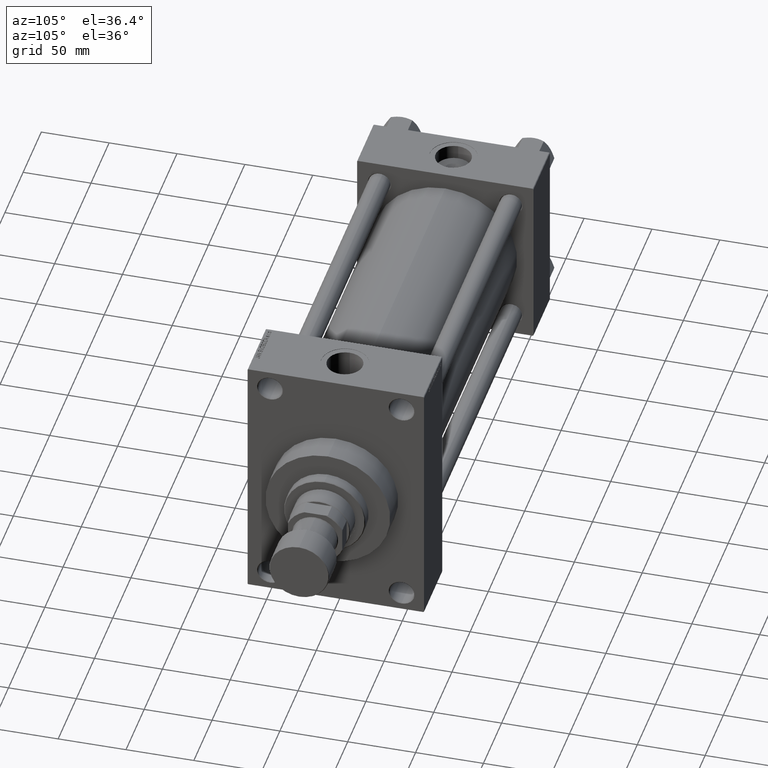
[diagram: clean part render]
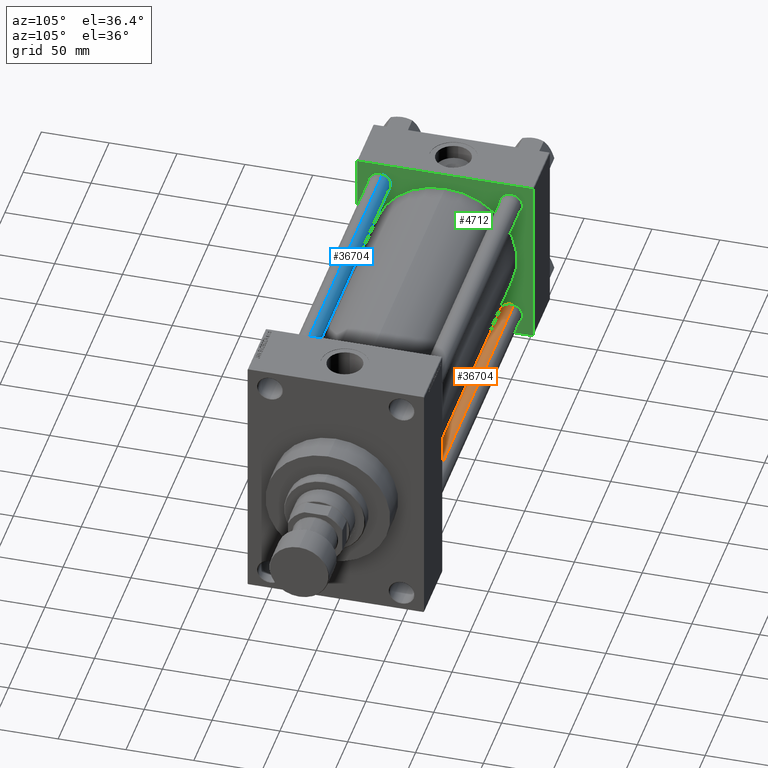
[diagram: same view with three faces highlighted in distinct colors, each labeled with its STEP entity id]
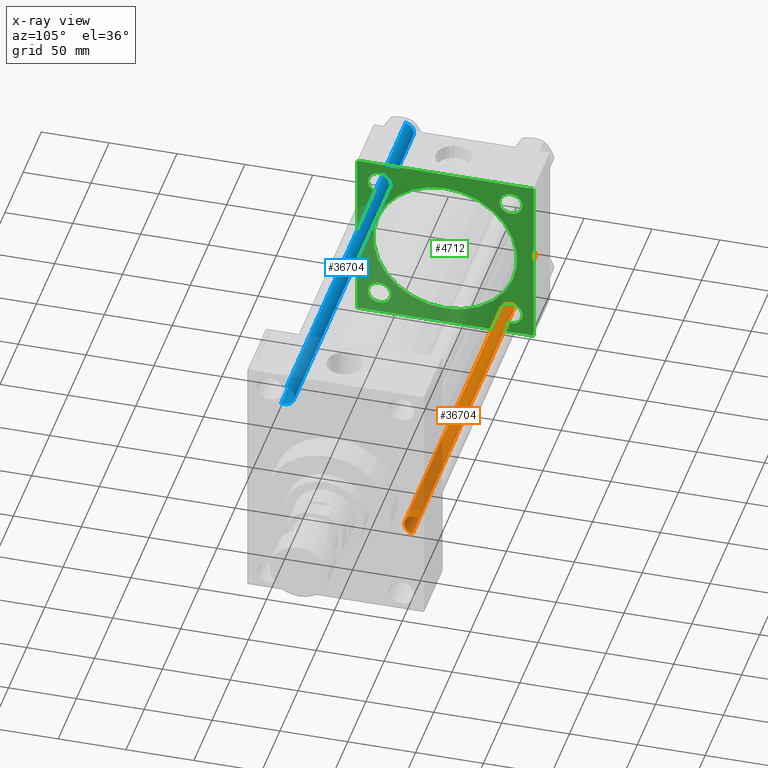
[diagram: x-ray of the same camera — body ghosted, the three highlighted faces saturated]
A machine part, auxiliary view with three faces highlighted in distinct colors.
The next image is the same camera in x-ray (body ghosted, the three faces saturated) — at least one of them is partly hidden behind the body in this view.
Their STEP definitions:

[orange] entity #36704 — the highlighted cylindrical surface (edge-blend (fillet) strip) has radius 8 mm, axis along (1, -0, 0).
#2401 = VERTEX_POINT ( 'NONE', #15594 ) ;
#3171 = CARTESIAN_POINT ( 'NONE',  ( 0.000000000000000000, 0.000000000000000000, 0.4999999999998894218 ) ) ;
#5388 = DIRECTION ( 'NONE',  ( -0.000000000000000000, -0.000000000000000000, -1.000000000000000000 ) ) ;
#6903 = VECTOR ( 'NONE', #46676, 1000.000000000000000 ) ;
#7329 = VERTEX_POINT ( 'NONE', #9004 ) ;
#8610 = CIRCLE ( 'NONE', #10175, 8.000000000000000000 ) ;
#9004 = CARTESIAN_POINT ( 'NONE',  ( -8.000000000000000000, 0.000000000000000000, 328.5000000000000000 ) ) ;
#9479 = ORIENTED_EDGE ( 'NONE', *, *, #25660, .F. ) ;
#10175 = AXIS2_PLACEMENT_3D ( 'NONE', #3171, #22133, #22368 ) ;
#12269 = DIRECTION ( 'NONE',  ( -0.000000000000000000, -0.000000000000000000, -1.000000000000000000 ) ) ;
#14270 = EDGE_CURVE ( 'NONE', #43964, #7329, #24417, .T. ) ;
#15274 = EDGE_LOOP ( 'NONE', ( #9479, #15983, #45624, #21773 ) ) ;
#15594 = CARTESIAN_POINT ( 'NONE',  ( 8.000000000000000000, 9.797174393178825657E-16, 0.4999999999998894218 ) ) ;
#15911 = CARTESIAN_POINT ( 'NONE',  ( 0.000000000000000000, 0.000000000000000000, 329.0000000000000000 ) ) ;
#15983 = ORIENTED_EDGE ( 'NONE', *, *, #14270, .T. ) ;
#17731 = LINE ( 'NONE', #25259, #6903 ) ;
#20709 = VECTOR ( 'NONE', #5388, 1000.000000000000000 ) ;
#21773 = ORIENTED_EDGE ( 'NONE', *, *, #34773, .T. ) ;
#22133 = DIRECTION ( 'NONE',  ( -0.000000000000000000, -0.000000000000000000, 1.000000000000000000 ) ) ;
#22368 = DIRECTION ( 'NONE',  ( 1.000000000000000000, 0.000000000000000000, 0.000000000000000000 ) ) ;
#23427 = DIRECTION ( 'NONE',  ( -1.000000000000000000, 0.000000000000000000, 0.000000000000000000 ) ) ;
#24417 = CIRCLE ( 'NONE', #45365, 8.000000000000000000 ) ;
#25089 = CARTESIAN_POINT ( 'NONE',  ( 8.000000000000000000, 9.797174393178825657E-16, 328.5000000000000000 ) ) ;
#25259 = CARTESIAN_POINT ( 'NONE',  ( -8.000000000000000000, 0.000000000000000000, 329.0000000000000000 ) ) ;
#25471 = DIRECTION ( 'NONE',  ( 1.000000000000000000, 0.000000000000000000, 0.000000000000000000 ) ) ;
#25660 = EDGE_CURVE ( 'NONE', #43964, #2401, #28224, .T. ) ;
#26839 = FACE_OUTER_BOUND ( 'NONE', #15274, .T. ) ;
#28224 = LINE ( 'NONE', #35034, #20709 ) ;
#31212 = EDGE_CURVE ( 'NONE', #7329, #41568, #17731, .T. ) ;
#34032 = CARTESIAN_POINT ( 'NONE',  ( -8.000000000000000000, 0.000000000000000000, 0.4999999999998894218 ) ) ;
#34601 = CYLINDRICAL_SURFACE ( 'NONE', #44380, 8.000000000000000000 ) ;
#34773 = EDGE_CURVE ( 'NONE', #41568, #2401, #8610, .T. ) ;
#35034 = CARTESIAN_POINT ( 'NONE',  ( 8.000000000000000000, 9.797174393178825657E-16, 329.0000000000000000 ) ) ;
#35704 = CARTESIAN_POINT ( 'NONE',  ( 0.000000000000000000, 0.000000000000000000, 328.5000000000000000 ) ) ;
#36704 = ADVANCED_FACE ( 'NONE', ( #26839 ), #34601, .T. ) ;
#41568 = VERTEX_POINT ( 'NONE', #34032 ) ;
#43483 = DIRECTION ( 'NONE',  ( 0.000000000000000000, 0.000000000000000000, -1.000000000000000000 ) ) ;
#43964 = VERTEX_POINT ( 'NONE', #25089 ) ;
#44380 = AXIS2_PLACEMENT_3D ( 'NONE', #15911, #12269, #23427 ) ;
#45365 = AXIS2_PLACEMENT_3D ( 'NONE', #35704, #43483, #25471 ) ;
#45624 = ORIENTED_EDGE ( 'NONE', *, *, #31212, .T. ) ;
#46676 = DIRECTION ( 'NONE',  ( -0.000000000000000000, -0.000000000000000000, -1.000000000000000000 ) ) ;

[blue] entity #36704 — the highlighted cylindrical surface (edge-blend (fillet) strip) has radius 8 mm, axis along (1, 0, 0).
#2401 = VERTEX_POINT ( 'NONE', #15594 ) ;
#3171 = CARTESIAN_POINT ( 'NONE',  ( 0.000000000000000000, 0.000000000000000000, 0.4999999999998894218 ) ) ;
#5388 = DIRECTION ( 'NONE',  ( -0.000000000000000000, -0.000000000000000000, -1.000000000000000000 ) ) ;
#6903 = VECTOR ( 'NONE', #46676, 1000.000000000000000 ) ;
#7329 = VERTEX_POINT ( 'NONE', #9004 ) ;
#8610 = CIRCLE ( 'NONE', #10175, 8.000000000000000000 ) ;
#9004 = CARTESIAN_POINT ( 'NONE',  ( -8.000000000000000000, 0.000000000000000000, 328.5000000000000000 ) ) ;
#9479 = ORIENTED_EDGE ( 'NONE', *, *, #25660, .F. ) ;
#10175 = AXIS2_PLACEMENT_3D ( 'NONE', #3171, #22133, #22368 ) ;
#12269 = DIRECTION ( 'NONE',  ( -0.000000000000000000, -0.000000000000000000, -1.000000000000000000 ) ) ;
#14270 = EDGE_CURVE ( 'NONE', #43964, #7329, #24417, .T. ) ;
#15274 = EDGE_LOOP ( 'NONE', ( #9479, #15983, #45624, #21773 ) ) ;
#15594 = CARTESIAN_POINT ( 'NONE',  ( 8.000000000000000000, 9.797174393178825657E-16, 0.4999999999998894218 ) ) ;
#15911 = CARTESIAN_POINT ( 'NONE',  ( 0.000000000000000000, 0.000000000000000000, 329.0000000000000000 ) ) ;
#15983 = ORIENTED_EDGE ( 'NONE', *, *, #14270, .T. ) ;
#17731 = LINE ( 'NONE', #25259, #6903 ) ;
#20709 = VECTOR ( 'NONE', #5388, 1000.000000000000000 ) ;
#21773 = ORIENTED_EDGE ( 'NONE', *, *, #34773, .T. ) ;
#22133 = DIRECTION ( 'NONE',  ( -0.000000000000000000, -0.000000000000000000, 1.000000000000000000 ) ) ;
#22368 = DIRECTION ( 'NONE',  ( 1.000000000000000000, 0.000000000000000000, 0.000000000000000000 ) ) ;
#23427 = DIRECTION ( 'NONE',  ( -1.000000000000000000, 0.000000000000000000, 0.000000000000000000 ) ) ;
#24417 = CIRCLE ( 'NONE', #45365, 8.000000000000000000 ) ;
#25089 = CARTESIAN_POINT ( 'NONE',  ( 8.000000000000000000, 9.797174393178825657E-16, 328.5000000000000000 ) ) ;
#25259 = CARTESIAN_POINT ( 'NONE',  ( -8.000000000000000000, 0.000000000000000000, 329.0000000000000000 ) ) ;
#25471 = DIRECTION ( 'NONE',  ( 1.000000000000000000, 0.000000000000000000, 0.000000000000000000 ) ) ;
#25660 = EDGE_CURVE ( 'NONE', #43964, #2401, #28224, .T. ) ;
#26839 = FACE_OUTER_BOUND ( 'NONE', #15274, .T. ) ;
#28224 = LINE ( 'NONE', #35034, #20709 ) ;
#31212 = EDGE_CURVE ( 'NONE', #7329, #41568, #17731, .T. ) ;
#34032 = CARTESIAN_POINT ( 'NONE',  ( -8.000000000000000000, 0.000000000000000000, 0.4999999999998894218 ) ) ;
#34601 = CYLINDRICAL_SURFACE ( 'NONE', #44380, 8.000000000000000000 ) ;
#34773 = EDGE_CURVE ( 'NONE', #41568, #2401, #8610, .T. ) ;
#35034 = CARTESIAN_POINT ( 'NONE',  ( 8.000000000000000000, 9.797174393178825657E-16, 329.0000000000000000 ) ) ;
#35704 = CARTESIAN_POINT ( 'NONE',  ( 0.000000000000000000, 0.000000000000000000, 328.5000000000000000 ) ) ;
#36704 = ADVANCED_FACE ( 'NONE', ( #26839 ), #34601, .T. ) ;
#41568 = VERTEX_POINT ( 'NONE', #34032 ) ;
#43483 = DIRECTION ( 'NONE',  ( 0.000000000000000000, 0.000000000000000000, -1.000000000000000000 ) ) ;
#43964 = VERTEX_POINT ( 'NONE', #25089 ) ;
#44380 = AXIS2_PLACEMENT_3D ( 'NONE', #15911, #12269, #23427 ) ;
#45365 = AXIS2_PLACEMENT_3D ( 'NONE', #35704, #43483, #25471 ) ;
#45624 = ORIENTED_EDGE ( 'NONE', *, *, #31212, .T. ) ;
#46676 = DIRECTION ( 'NONE',  ( -0.000000000000000000, -0.000000000000000000, -1.000000000000000000 ) ) ;

[green] entity #4712 — the highlighted planar face has unit normal (-1, 0, 0).
#30 = DIRECTION ( 'NONE',  ( -0.000000000000000000, 0.000000000000000000, 1.000000000000000000 ) ) ;
#62 = ORIENTED_EDGE ( 'NONE', *, *, #35291, .T. ) ;
#273 = PLANE ( 'NONE',  #40518 ) ;
#855 = DIRECTION ( 'NONE',  ( -1.000000000000000000, 0.000000000000000000, -0.000000000000000000 ) ) ;
#1073 = EDGE_CURVE ( 'NONE', #2585, #21709, #35714, .T. ) ;
#1119 = CARTESIAN_POINT ( 'NONE',  ( 45.00000000000000000, 64.49999999999997158, 65.00000000000001421 ) ) ;
#1941 = CARTESIAN_POINT ( 'NONE',  ( 45.00000000000000000, -65.00000000000000000, 64.50000000000000000 ) ) ;
#2421 = DIRECTION ( 'NONE',  ( -0.000000000000000000, 0.7071067811865474617, 0.7071067811865474617 ) ) ;
#2585 = VERTEX_POINT ( 'NONE', #17739 ) ;
#2828 = CARTESIAN_POINT ( 'NONE',  ( 45.00000000000000000, -65.00000000000000000, 64.50000000000000000 ) ) ;
#3374 = DIRECTION ( 'NONE',  ( -1.000000000000000000, 0.000000000000000000, -0.000000000000000000 ) ) ;
#3682 = CARTESIAN_POINT ( 'NONE',  ( 45.00000000000000000, -64.49999999999994316, -65.00000000000000000 ) ) ;
#3687 = FACE_OUTER_BOUND ( 'NONE', #34337, .T. ) ;
#4607 = VERTEX_POINT ( 'NONE', #14177 ) ;
#4712 = ADVANCED_FACE ( 'NONE', ( #22163, #7820, #29689, #15595, #33576, #3687 ), #273, .F. ) ;
#5514 = DIRECTION ( 'NONE',  ( 0.000000000000000000, 0.000000000000000000, 1.000000000000000000 ) ) ;
#5575 = ORIENTED_EDGE ( 'NONE', *, *, #33763, .F. ) ;
#6167 = DIRECTION ( 'NONE',  ( -1.000000000000000000, 0.000000000000000000, -0.000000000000000000 ) ) ;
#6248 = EDGE_CURVE ( 'NONE', #13080, #40911, #35893, .T. ) ;
#6315 = CARTESIAN_POINT ( 'NONE',  ( 45.00000000000000000, 65.00000000000000000, -64.49999999999995737 ) ) ;
#6745 = EDGE_CURVE ( 'NONE', #33483, #23123, #14206, .T. ) ;
#7820 = FACE_BOUND ( 'NONE', #43369, .T. ) ;
#7972 = CARTESIAN_POINT ( 'NONE',  ( 45.00000000000000000, -65.00000000000000000, 65.00000000000000000 ) ) ;
#8895 = EDGE_CURVE ( 'NONE', #39294, #28541, #26667, .T. ) ;
#9965 = ORIENTED_EDGE ( 'NONE', *, *, #39598, .T. ) ;
#10023 = DIRECTION ( 'NONE',  ( 1.000000000000000000, -0.000000000000000000, 0.000000000000000000 ) ) ;
#10397 = CARTESIAN_POINT ( 'NONE',  ( 45.00000000000000000, -48.44999999999999574, 56.94999999999986784 ) ) ;
#10768 = CIRCLE ( 'NONE', #37911, 8.500000000000007105 ) ;
#11079 = VERTEX_POINT ( 'NONE', #27239 ) ;
#12155 = CIRCLE ( 'NONE', #15279, 8.499999999999840128 ) ;
#12304 = DIRECTION ( 'NONE',  ( 0.000000000000000000, 0.000000000000000000, 1.000000000000000000 ) ) ;
#12908 = CARTESIAN_POINT ( 'NONE',  ( 45.00000000000000000, 65.00000000000000000, 65.00000000000001421 ) ) ;
#12954 = ORIENTED_EDGE ( 'NONE', *, *, #20732, .T. ) ;
#13080 = VERTEX_POINT ( 'NONE', #38210 ) ;
#13178 = CARTESIAN_POINT ( 'NONE',  ( 44.99999999999998579, -2.602085213965210642E-15, 0.000000000000000000 ) ) ;
#13259 = CIRCLE ( 'NONE', #46634, 8.499999999999840128 ) ;
#13506 = CARTESIAN_POINT ( 'NONE',  ( 45.00000000000000000, 65.00000000000000000, 65.00000000000001421 ) ) ;
#13668 = VERTEX_POINT ( 'NONE', #27626 ) ;
#14075 = CARTESIAN_POINT ( 'NONE',  ( 45.00000000000000000, 48.45000000000000995, -48.45000000000001705 ) ) ;
#14177 = CARTESIAN_POINT ( 'NONE',  ( 45.00000000000000000, -48.44999999999999574, -56.94999999999986784 ) ) ;
#14206 = CIRCLE ( 'NONE', #34361, 53.00000000000000711 ) ;
#14720 = CIRCLE ( 'NONE', #44991, 8.500000000000007105 ) ;
#15122 = CARTESIAN_POINT ( 'NONE',  ( 45.00000000000000000, 48.45000000000000995, 56.95000000000002416 ) ) ;
#15279 = AXIS2_PLACEMENT_3D ( 'NONE', #25725, #3374, #33494 ) ;
#15433 = ORIENTED_EDGE ( 'NONE', *, *, #22790, .T. ) ;
#15595 = FACE_BOUND ( 'NONE', #38389, .T. ) ;
#15994 = CARTESIAN_POINT ( 'NONE',  ( 45.00000000000000000, 48.45000000000000995, 48.45000000000001705 ) ) ;
#16158 = VERTEX_POINT ( 'NONE', #43653 ) ;
#17075 = CARTESIAN_POINT ( 'NONE',  ( 44.99999999999998579, -2.602085213965210642E-15, 0.000000000000000000 ) ) ;
#17078 = CIRCLE ( 'NONE', #34120, 53.00000000000000711 ) ;
#17592 = DIRECTION ( 'NONE',  ( 0.000000000000000000, -1.000000000000000000, -1.067522139062650425E-16 ) ) ;
#17594 = CARTESIAN_POINT ( 'NONE',  ( 45.00000000000000000, -48.44999999999999574, 48.45000000000003126 ) ) ;
#17605 = VERTEX_POINT ( 'NONE', #27748 ) ;
#17660 = VECTOR ( 'NONE', #38173, 1000.000000000000000 ) ;
#17739 = CARTESIAN_POINT ( 'NONE',  ( 45.00000000000000000, -64.49999999999997158, 65.00000000000000000 ) ) ;
#18037 = LINE ( 'NONE', #3682, #42772 ) ;
#20090 = CARTESIAN_POINT ( 'NONE',  ( 45.00000000000000000, -48.44999999999999574, -48.45000000000003126 ) ) ;
#20176 = LINE ( 'NONE', #12908, #17660 ) ;
#20298 = DIRECTION ( 'NONE',  ( -1.000000000000000000, 0.000000000000000000, -0.000000000000000000 ) ) ;
#20578 = DIRECTION ( 'NONE',  ( -1.000000000000000000, 0.000000000000000000, -0.000000000000000000 ) ) ;
#20732 = EDGE_CURVE ( 'NONE', #32146, #16158, #30735, .T. ) ;
#20864 = EDGE_LOOP ( 'NONE', ( #32769, #26560 ) ) ;
#21094 = DIRECTION ( 'NONE',  ( -1.000000000000000000, 0.000000000000000000, -0.000000000000000000 ) ) ;
#21346 = DIRECTION ( 'NONE',  ( -1.000000000000000000, 0.000000000000000000, -0.000000000000000000 ) ) ;
#21545 = EDGE_CURVE ( 'NONE', #40911, #13080, #12155, .T. ) ;
#21709 = VERTEX_POINT ( 'NONE', #2828 ) ;
#22163 = FACE_BOUND ( 'NONE', #32384, .T. ) ;
#22257 = VERTEX_POINT ( 'NONE', #27472 ) ;
#22790 = EDGE_CURVE ( 'NONE', #17605, #4607, #33890, .T. ) ;
#22978 = CARTESIAN_POINT ( 'NONE',  ( 45.00000000000000000, 48.45000000000000995, 48.45000000000001705 ) ) ;
#23013 = DIRECTION ( 'NONE',  ( 0.000000000000000000, 0.000000000000000000, -1.000000000000000000 ) ) ;
#23123 = VERTEX_POINT ( 'NONE', #46030 ) ;
#23934 = LINE ( 'NONE', #13506, #28089 ) ;
#24115 = ORIENTED_EDGE ( 'NONE', *, *, #29926, .T. ) ;
#24280 = ORIENTED_EDGE ( 'NONE', *, *, #21545, .T. ) ;
#24742 = CARTESIAN_POINT ( 'NONE',  ( 45.00000000000000000, 48.45000000000000995, -48.45000000000001705 ) ) ;
#24870 = VECTOR ( 'NONE', #17592, 1000.000000000000000 ) ;
#25725 = CARTESIAN_POINT ( 'NONE',  ( 45.00000000000000000, -48.44999999999999574, 48.45000000000003126 ) ) ;
#25909 = AXIS2_PLACEMENT_3D ( 'NONE', #15994, #30795, #38345 ) ;
#25985 = VECTOR ( 'NONE', #43575, 1000.000000000000114 ) ;
#26560 = ORIENTED_EDGE ( 'NONE', *, *, #32859, .F. ) ;
#26667 = CIRCLE ( 'NONE', #25909, 8.500000000000007105 ) ;
#27239 = CARTESIAN_POINT ( 'NONE',  ( 45.00000000000000000, -65.00000000000000000, -64.49999999999991473 ) ) ;
#27472 = CARTESIAN_POINT ( 'NONE',  ( 45.00000000000000000, 65.00000000000000000, 64.49999999999998579 ) ) ;
#27626 = CARTESIAN_POINT ( 'NONE',  ( 45.00000000000000000, 64.49999999999997158, -64.99999999999998579 ) ) ;
#27748 = CARTESIAN_POINT ( 'NONE',  ( 45.00000000000000000, -48.44999999999999574, -39.95000000000018758 ) ) ;
#27811 = EDGE_CURVE ( 'NONE', #33314, #2585, #20176, .T. ) ;
#28030 = VECTOR ( 'NONE', #23013, 1000.000000000000000 ) ;
#28053 = ORIENTED_EDGE ( 'NONE', *, *, #1073, .T. ) ;
#28089 = VECTOR ( 'NONE', #43144, 1000.000000000000000 ) ;
#28541 = VERTEX_POINT ( 'NONE', #15122 ) ;
#28735 = CARTESIAN_POINT ( 'NONE',  ( 45.00000000000000000, 64.49999999999997158, 65.00000000000001421 ) ) ;
#28904 = LINE ( 'NONE', #6315, #37185 ) ;
#29352 = ORIENTED_EDGE ( 'NONE', *, *, #8895, .T. ) ;
#29441 = DIRECTION ( 'NONE',  ( 0.000000000000000000, 0.7071067811865279218, -0.7071067811865671127 ) ) ;
#29689 = FACE_BOUND ( 'NONE', #44728, .T. ) ;
#29926 = EDGE_CURVE ( 'NONE', #16158, #32146, #10768, .T. ) ;
#30570 = CARTESIAN_POINT ( 'NONE',  ( 45.00000000000000000, 48.45000000000000995, 39.95000000000000284 ) ) ;
#30735 = CIRCLE ( 'NONE', #40842, 8.500000000000007105 ) ;
#30795 = DIRECTION ( 'NONE',  ( -1.000000000000000000, 0.000000000000000000, -0.000000000000000000 ) ) ;
#31031 = ORIENTED_EDGE ( 'NONE', *, *, #35111, .T. ) ;
#31221 = EDGE_CURVE ( 'NONE', #13668, #34013, #28904, .T. ) ;
#31715 = EDGE_CURVE ( 'NONE', #28541, #39294, #14720, .T. ) ;
#32146 = VERTEX_POINT ( 'NONE', #46384 ) ;
#32381 = AXIS2_PLACEMENT_3D ( 'NONE', #41946, #20298, #12304 ) ;
#32384 = EDGE_LOOP ( 'NONE', ( #62, #15433 ) ) ;
#32546 = DIRECTION ( 'NONE',  ( -0.000000000000000000, -0.7071067811865672237, -0.7071067811865279218 ) ) ;
#32600 = DIRECTION ( 'NONE',  ( 0.000000000000000000, 0.000000000000000000, 1.000000000000000000 ) ) ;
#32769 = ORIENTED_EDGE ( 'NONE', *, *, #6745, .F. ) ;
#32859 = EDGE_CURVE ( 'NONE', #23123, #33483, #17078, .T. ) ;
#33314 = VERTEX_POINT ( 'NONE', #1119 ) ;
#33483 = VERTEX_POINT ( 'NONE', #47545 ) ;
#33494 = DIRECTION ( 'NONE',  ( 0.000000000000000000, 0.000000000000000000, 1.000000000000000000 ) ) ;
#33576 = FACE_BOUND ( 'NONE', #20864, .T. ) ;
#33763 = EDGE_CURVE ( 'NONE', #13668, #37312, #40660, .T. ) ;
#33890 = CIRCLE ( 'NONE', #32381, 8.499999999999840128 ) ;
#34013 = VERTEX_POINT ( 'NONE', #45990 ) ;
#34120 = AXIS2_PLACEMENT_3D ( 'NONE', #17075, #10023, #32600 ) ;
#34337 = EDGE_LOOP ( 'NONE', ( #5575, #46527, #42298, #47488, #46776, #28053, #31031, #9965 ) ) ;
#34361 = AXIS2_PLACEMENT_3D ( 'NONE', #13178, #46956, #35040 ) ;
#35040 = DIRECTION ( 'NONE',  ( 0.000000000000000000, 0.000000000000000000, 1.000000000000000000 ) ) ;
#35111 = EDGE_CURVE ( 'NONE', #21709, #11079, #45156, .T. ) ;
#35291 = EDGE_CURVE ( 'NONE', #4607, #17605, #13259, .T. ) ;
#35714 = LINE ( 'NONE', #1941, #44275 ) ;
#35893 = CIRCLE ( 'NONE', #41319, 8.499999999999840128 ) ;
#36008 = ORIENTED_EDGE ( 'NONE', *, *, #6248, .T. ) ;
#37185 = VECTOR ( 'NONE', #2421, 1000.000000000000114 ) ;
#37312 = VERTEX_POINT ( 'NONE', #41316 ) ;
#37911 = AXIS2_PLACEMENT_3D ( 'NONE', #24742, #21094, #39562 ) ;
#38173 = DIRECTION ( 'NONE',  ( 0.000000000000000000, -1.000000000000000000, -1.067522139062650425E-16 ) ) ;
#38210 = CARTESIAN_POINT ( 'NONE',  ( 45.00000000000000000, -48.44999999999999574, 39.95000000000018758 ) ) ;
#38345 = DIRECTION ( 'NONE',  ( 0.000000000000000000, 0.000000000000000000, 1.000000000000000000 ) ) ;
#38389 = EDGE_LOOP ( 'NONE', ( #29352, #42595 ) ) ;
#39294 = VERTEX_POINT ( 'NONE', #30570 ) ;
#39440 = LINE ( 'NONE', #28735, #25985 ) ;
#39460 = DIRECTION ( 'NONE',  ( 0.000000000000000000, 0.000000000000000000, 1.000000000000000000 ) ) ;
#39562 = DIRECTION ( 'NONE',  ( 0.000000000000000000, 0.000000000000000000, 1.000000000000000000 ) ) ;
#39598 = EDGE_CURVE ( 'NONE', #11079, #37312, #18037, .T. ) ;
#40518 = AXIS2_PLACEMENT_3D ( 'NONE', #41107, #41602, #30 ) ;
#40660 = LINE ( 'NONE', #40892, #24870 ) ;
#40842 = AXIS2_PLACEMENT_3D ( 'NONE', #14075, #21346, #47612 ) ;
#40892 = CARTESIAN_POINT ( 'NONE',  ( 45.00000000000000000, 65.00000000000000000, -64.99999999999998579 ) ) ;
#40911 = VERTEX_POINT ( 'NONE', #10397 ) ;
#41107 = CARTESIAN_POINT ( 'NONE',  ( 45.00000000000000000, 0.000000000000000000, 0.000000000000000000 ) ) ;
#41193 = EDGE_CURVE ( 'NONE', #22257, #34013, #23934, .T. ) ;
#41316 = CARTESIAN_POINT ( 'NONE',  ( 45.00000000000000000, -64.49999999999994316, -65.00000000000000000 ) ) ;
#41319 = AXIS2_PLACEMENT_3D ( 'NONE', #17594, #6167, #39460 ) ;
#41602 = DIRECTION ( 'NONE',  ( -1.000000000000000000, 0.000000000000000000, -0.000000000000000000 ) ) ;
#41946 = CARTESIAN_POINT ( 'NONE',  ( 45.00000000000000000, -48.44999999999999574, -48.45000000000003126 ) ) ;
#42298 = ORIENTED_EDGE ( 'NONE', *, *, #41193, .F. ) ;
#42595 = ORIENTED_EDGE ( 'NONE', *, *, #31715, .T. ) ;
#42772 = VECTOR ( 'NONE', #29441, 1000.000000000000000 ) ;
#43144 = DIRECTION ( 'NONE',  ( 0.000000000000000000, 0.000000000000000000, -1.000000000000000000 ) ) ;
#43369 = EDGE_LOOP ( 'NONE', ( #24115, #12954 ) ) ;
#43575 = DIRECTION ( 'NONE',  ( 0.000000000000000000, -0.7071067811865474617, 0.7071067811865474617 ) ) ;
#43653 = CARTESIAN_POINT ( 'NONE',  ( 45.00000000000000000, 48.45000000000000995, -56.95000000000002416 ) ) ;
#44275 = VECTOR ( 'NONE', #32546, 1000.000000000000000 ) ;
#44728 = EDGE_LOOP ( 'NONE', ( #36008, #24280 ) ) ;
#44984 = EDGE_CURVE ( 'NONE', #22257, #33314, #39440, .T. ) ;
#44991 = AXIS2_PLACEMENT_3D ( 'NONE', #22978, #855, #45590 ) ;
#45156 = LINE ( 'NONE', #7972, #28030 ) ;
#45590 = DIRECTION ( 'NONE',  ( 0.000000000000000000, 0.000000000000000000, 1.000000000000000000 ) ) ;
#45990 = CARTESIAN_POINT ( 'NONE',  ( 45.00000000000000000, 65.00000000000000000, -64.49999999999995737 ) ) ;
#46030 = CARTESIAN_POINT ( 'NONE',  ( 44.99999999999998579, 3.888542821515762466E-15, -53.00000000000000711 ) ) ;
#46384 = CARTESIAN_POINT ( 'NONE',  ( 45.00000000000000000, 48.45000000000000995, -39.95000000000000284 ) ) ;
#46527 = ORIENTED_EDGE ( 'NONE', *, *, #31221, .T. ) ;
#46634 = AXIS2_PLACEMENT_3D ( 'NONE', #20090, #20578, #5514 ) ;
#46776 = ORIENTED_EDGE ( 'NONE', *, *, #27811, .T. ) ;
#46956 = DIRECTION ( 'NONE',  ( 1.000000000000000000, -0.000000000000000000, 0.000000000000000000 ) ) ;
#47488 = ORIENTED_EDGE ( 'NONE', *, *, #44984, .T. ) ;
#47545 = CARTESIAN_POINT ( 'NONE',  ( 44.99999999999998579, -2.602085213965210642E-15, 53.00000000000000711 ) ) ;
#47612 = DIRECTION ( 'NONE',  ( 0.000000000000000000, 0.000000000000000000, 1.000000000000000000 ) ) ;